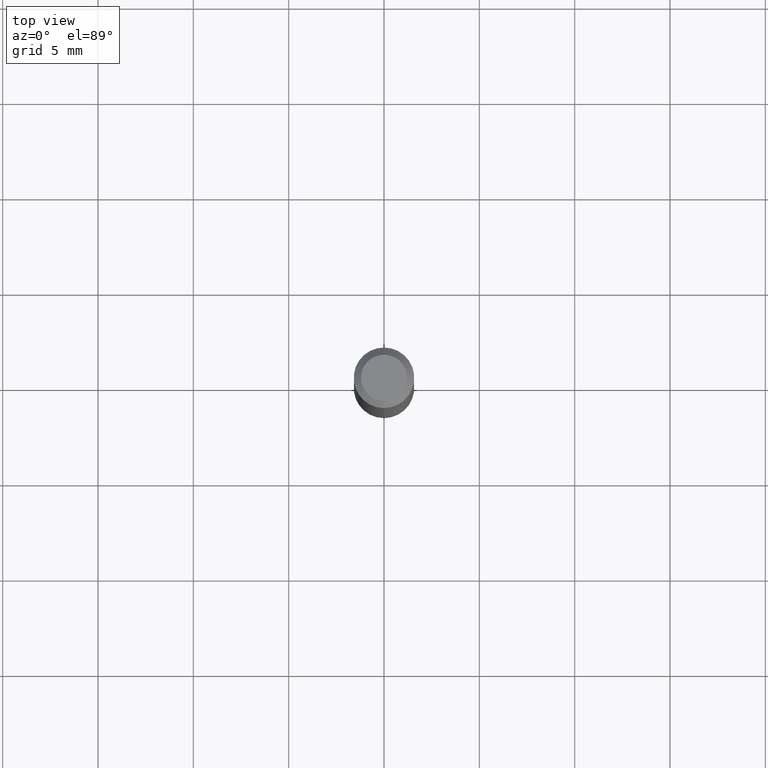
[diagram: clean part render]
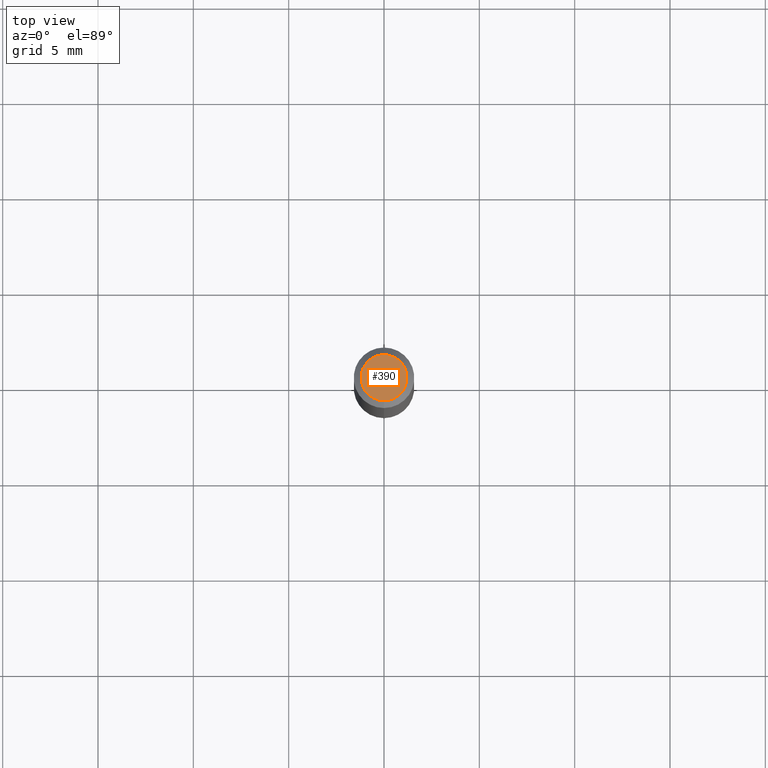
[diagram: same view with one face highlighted and labeled with its STEP entity id]
A machine part, top view. The second image highlights one B-rep face of the part: STEP entity #390.
In plain terms, the highlighted planar face has unit normal (0, -0, -1).
Its self-contained STEP definition (entity closure, byte-faithful):
#20 = CARTESIAN_POINT ( 'NONE',  ( 2.166821834485461090E-46, -3.093638878300256237E-32, -8.860546001732374600E-18 ) ) ;
#28 = CIRCLE ( 'NONE', #144, 0.04749999999999999362 ) ;
#29 = DIRECTION ( 'NONE',  ( 6.982962677686265922E-15, 1.000000000000000000, -3.491476572318908216E-15 ) ) ;
#31 = CARTESIAN_POINT ( 'NONE',  ( -3.773273898774340269E-16, -0.04749999999999999362, 1.569845911834157768E-16 ) ) ;
#58 = EDGE_CURVE ( 'NONE', #364, #122, #28, .T. ) ;
#72 = EDGE_LOOP ( 'NONE', ( #216, #232 ) ) ;
#122 = VERTEX_POINT ( 'NONE', #31 ) ;
#144 = AXIS2_PLACEMENT_3D ( 'NONE', #493, #449, #289 ) ;
#157 = AXIS2_PLACEMENT_3D ( 'NONE', #20, #365, #414 ) ;
#216 = ORIENTED_EDGE ( 'NONE', *, *, #58, .T. ) ;
#219 = CARTESIAN_POINT ( 'NONE',  ( 3.316907271900976096E-16, 0.04749999999999999362, -1.702754101860143294E-16 ) ) ;
#222 = PLANE ( 'NONE',  #500 ) ;
#232 = ORIENTED_EDGE ( 'NONE', *, *, #462, .T. ) ;
#289 = DIRECTION ( 'NONE',  ( -6.982962677686266711E-15, -1.000000000000000000, 3.491476572318908611E-15 ) ) ;
#364 = VERTEX_POINT ( 'NONE', #464 ) ;
#365 = DIRECTION ( 'NONE',  ( -2.445472134631221658E-29, 3.491476572318908216E-15, 1.000000000000000000 ) ) ;
#381 = FACE_OUTER_BOUND ( 'NONE', #72, .T. ) ;
#390 = ADVANCED_FACE ( 'NONE', ( #381 ), #222, .F. ) ;
#408 = CIRCLE ( 'NONE', #157, 0.04749999999999999362 ) ;
#414 = DIRECTION ( 'NONE',  ( -6.982962677686266711E-15, -1.000000000000000000, 3.491476572318908611E-15 ) ) ;
#449 = DIRECTION ( 'NONE',  ( -2.445472134631221658E-29, 3.491476572318908216E-15, 1.000000000000000000 ) ) ;
#462 = EDGE_CURVE ( 'NONE', #122, #364, #408, .T. ) ;
#464 = CARTESIAN_POINT ( 'NONE',  ( 3.840629472727447874E-16, 0.04749999999999999362, -1.747056831868805136E-16 ) ) ;
#493 = CARTESIAN_POINT ( 'NONE',  ( 2.166821834485461090E-46, -3.093638878300256237E-32, -8.860546001732374600E-18 ) ) ;
#500 = AXIS2_PLACEMENT_3D ( 'NONE', #219, #508, #29 ) ;
#508 = DIRECTION ( 'NONE',  ( 2.445472134631221378E-29, -3.491476572318908216E-15, -1.000000000000000000 ) ) ;